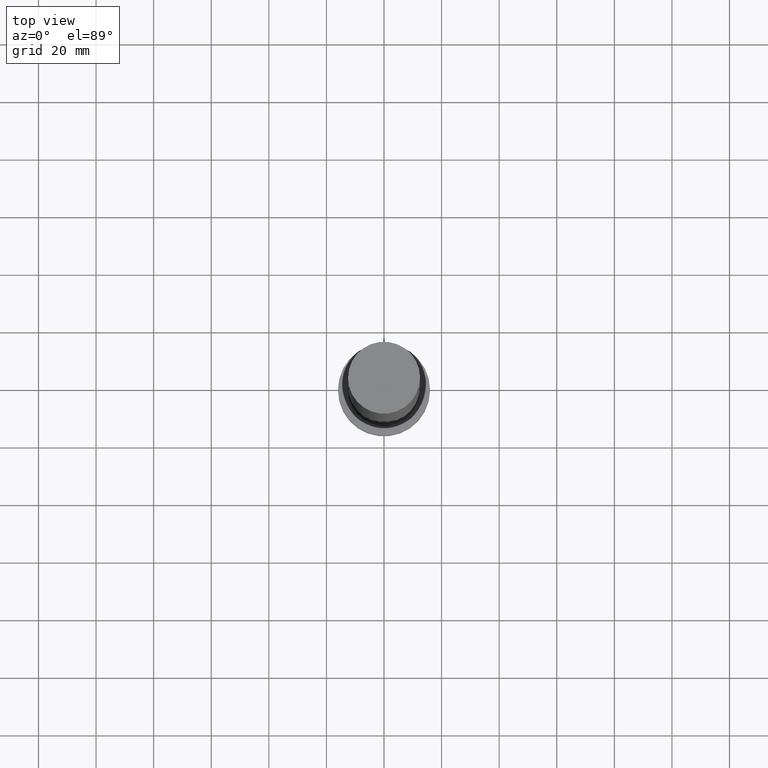
[diagram: clean part render]
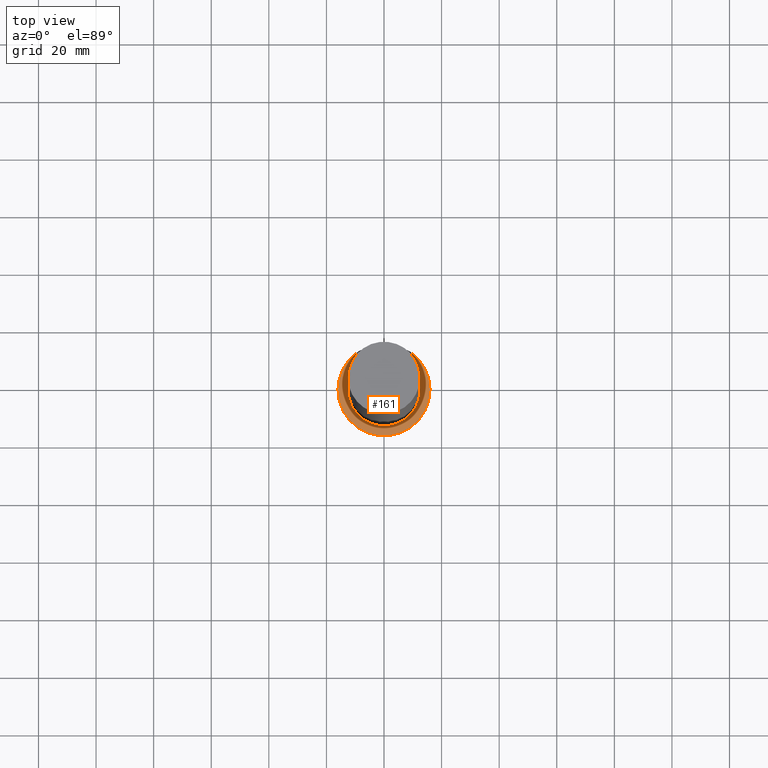
[diagram: same view with one face highlighted and labeled with its STEP entity id]
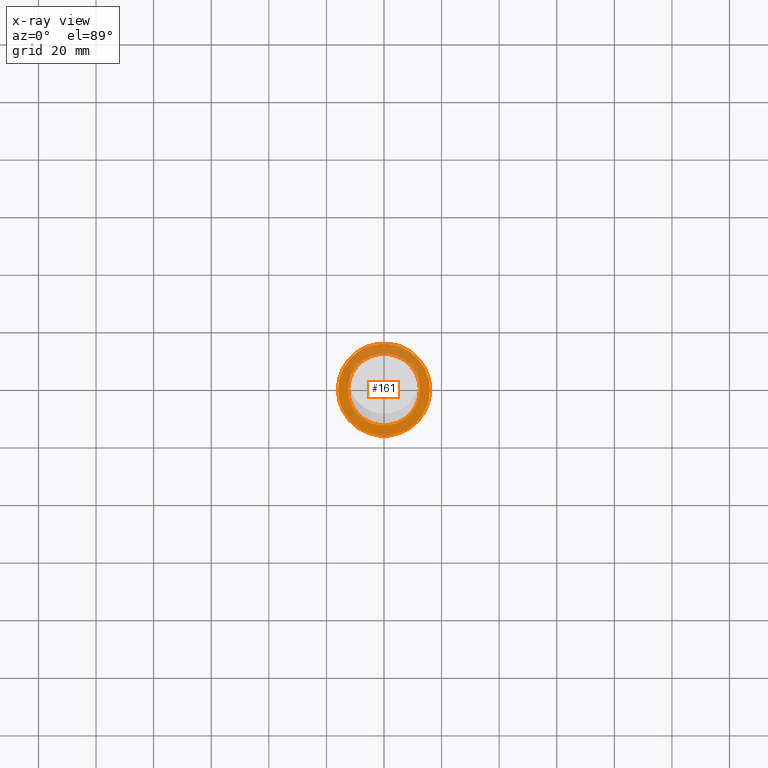
[diagram: x-ray of the same camera — body ghosted, the highlighted face saturated]
A machine part, top view. The second image highlights one B-rep face of the part: STEP entity #161.
The next image is the same camera in x-ray: the body ghosted, the highlighted face saturated — about 31% of this face is hidden behind the body in this view.
In plain terms, the highlighted planar face has unit normal (0, 0, 1).
Its self-contained STEP definition (entity closure, byte-faithful):
#4 = EDGE_LOOP ( 'NONE', ( #113, #38 ) ) ;
#6 = VERTEX_POINT ( 'NONE', #179 ) ;
#10 = DIRECTION ( 'NONE',  ( 0.000000000000000000, 0.000000000000000000, 1.000000000000000000 ) ) ;
#14 = DIRECTION ( 'NONE',  ( 1.000000000000000000, 0.000000000000000000, 0.000000000000000000 ) ) ;
#22 = VERTEX_POINT ( 'NONE', #104 ) ;
#27 = EDGE_CURVE ( 'NONE', #22, #6, #154, .T. ) ;
#38 = ORIENTED_EDGE ( 'NONE', *, *, #27, .T. ) ;
#55 = AXIS2_PLACEMENT_3D ( 'NONE', #93, #176, #80 ) ;
#63 = EDGE_LOOP ( 'NONE', ( #177, #132 ) ) ;
#71 = CIRCLE ( 'NONE', #143, 12.50000000000000000 ) ;
#75 = CARTESIAN_POINT ( 'NONE',  ( 12.50000000000000000, 1.530808498934191521E-15, 10.00000000000000000 ) ) ;
#77 = FACE_BOUND ( 'NONE', #63, .T. ) ;
#80 = DIRECTION ( 'NONE',  ( 1.000000000000000000, 0.000000000000000000, -0.000000000000000000 ) ) ;
#87 = DIRECTION ( 'NONE',  ( 1.000000000000000000, 0.000000000000000000, 0.000000000000000000 ) ) ;
#92 = DIRECTION ( 'NONE',  ( 0.000000000000000000, 0.000000000000000000, 1.000000000000000000 ) ) ;
#93 = CARTESIAN_POINT ( 'NONE',  ( 0.000000000000000000, 0.000000000000000000, 10.00000000000000000 ) ) ;
#104 = CARTESIAN_POINT ( 'NONE',  ( 16.00000000000000000, 1.959434878635765131E-15, 10.00000000000000000 ) ) ;
#113 = ORIENTED_EDGE ( 'NONE', *, *, #135, .T. ) ;
#114 = EDGE_CURVE ( 'NONE', #237, #140, #200, .T. ) ;
#132 = ORIENTED_EDGE ( 'NONE', *, *, #250, .F. ) ;
#135 = EDGE_CURVE ( 'NONE', #6, #22, #192, .T. ) ;
#140 = VERTEX_POINT ( 'NONE', #75 ) ;
#142 = DIRECTION ( 'NONE',  ( 1.000000000000000000, 0.000000000000000000, 0.000000000000000000 ) ) ;
#143 = AXIS2_PLACEMENT_3D ( 'NONE', #239, #144, #142 ) ;
#144 = DIRECTION ( 'NONE',  ( 0.000000000000000000, 0.000000000000000000, 1.000000000000000000 ) ) ;
#146 = AXIS2_PLACEMENT_3D ( 'NONE', #183, #10, #87 ) ;
#152 = DIRECTION ( 'NONE',  ( 0.000000000000000000, 0.000000000000000000, 1.000000000000000000 ) ) ;
#154 = CIRCLE ( 'NONE', #146, 16.00000000000000000 ) ;
#161 = ADVANCED_FACE ( 'NONE', ( #77, #231 ), #233, .T. ) ;
#163 = AXIS2_PLACEMENT_3D ( 'NONE', #213, #92, #14 ) ;
#176 = DIRECTION ( 'NONE',  ( 0.000000000000000000, 0.000000000000000000, 1.000000000000000000 ) ) ;
#177 = ORIENTED_EDGE ( 'NONE', *, *, #114, .F. ) ;
#179 = CARTESIAN_POINT ( 'NONE',  ( -16.00000000000000000, 0.000000000000000000, 10.00000000000000000 ) ) ;
#183 = CARTESIAN_POINT ( 'NONE',  ( 0.000000000000000000, 0.000000000000000000, 10.00000000000000000 ) ) ;
#192 = CIRCLE ( 'NONE', #238, 16.00000000000000000 ) ;
#200 = CIRCLE ( 'NONE', #163, 12.50000000000000000 ) ;
#213 = CARTESIAN_POINT ( 'NONE',  ( 0.000000000000000000, 0.000000000000000000, 10.00000000000000000 ) ) ;
#228 = CARTESIAN_POINT ( 'NONE',  ( 0.000000000000000000, 0.000000000000000000, 10.00000000000000000 ) ) ;
#231 = FACE_OUTER_BOUND ( 'NONE', #4, .T. ) ;
#233 = PLANE ( 'NONE',  #55 ) ;
#237 = VERTEX_POINT ( 'NONE', #242 ) ;
#238 = AXIS2_PLACEMENT_3D ( 'NONE', #228, #152, #254 ) ;
#239 = CARTESIAN_POINT ( 'NONE',  ( 0.000000000000000000, 0.000000000000000000, 10.00000000000000000 ) ) ;
#242 = CARTESIAN_POINT ( 'NONE',  ( -12.50000000000000000, 0.000000000000000000, 10.00000000000000000 ) ) ;
#250 = EDGE_CURVE ( 'NONE', #140, #237, #71, .T. ) ;
#254 = DIRECTION ( 'NONE',  ( 1.000000000000000000, 0.000000000000000000, 0.000000000000000000 ) ) ;